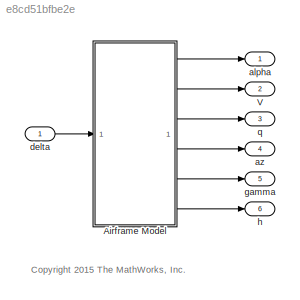
MODEL slx_e8cd51bfbe2e
KIND model
CONFIG AbsTol = 1e-6
CONFIG EnableMultiTasking = off
CONFIG FixedStep = auto
CONFIG MaxStep = auto
CONFIG MinStep = auto
CONFIG RelTol = 1e-3
CONFIG SampleTimeConstraint = Unconstrained
CONFIG SolverName = ode45
CONFIG StartTime = 0.0
CONFIG StopTime = 1
WORKSPACE source: MATLAB code (in-file)
WORKSPACE code: AirframeData
WORKSPACE x_ini = 0
WORKSPACE h_ini = 10000/3.28084  (= 3047.99990246)
WORKSPACE theta_ini = 0
WORKSPACE q_ini = 0
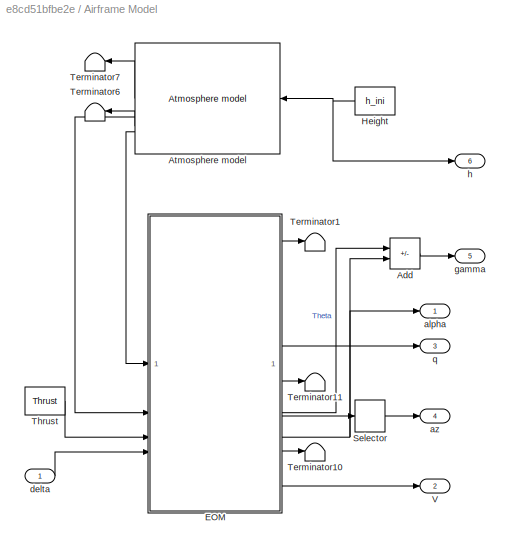
BLOCK [SubSystem] Airframe Model
BLOCK [Sum] Airframe Model/Add
  IconShape = rectangular
  Inputs = +-
BLOCK [Reference] Airframe Model/Atmosphere model  REF=aerospace/Atmosphere/Atmosphere  (lib defined in mdl_cf564d925549, slx_1354fe9238a2, +3 more)
model
  SourceBlock = aerospace/Atmosphere/Atmosphere\nmodel
  SourceType = Atmosphere Model
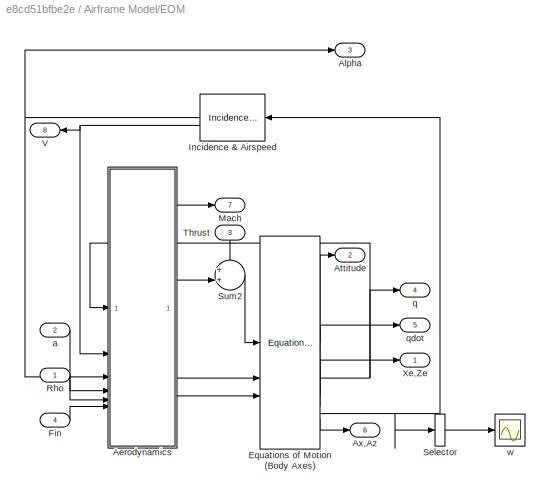
BLOCK [SubSystem] Airframe Model/EOM
BLOCK [Reference] Airframe Model/EOM/ Equations of Motion (Body Axes)  REF=aerospace/3DoF  (lib defined in mdl_cf564d925549, slx_1354fe9238a2, +3 more)
Equations
of
Motion / Equations of Motion
(Body Axes)
  SourceBlock = aerospace/3DoF\nEquations\nof\nMotion / Equations of Motion\n(Body Axes)
  SourceType = 3 DOF equations of motion
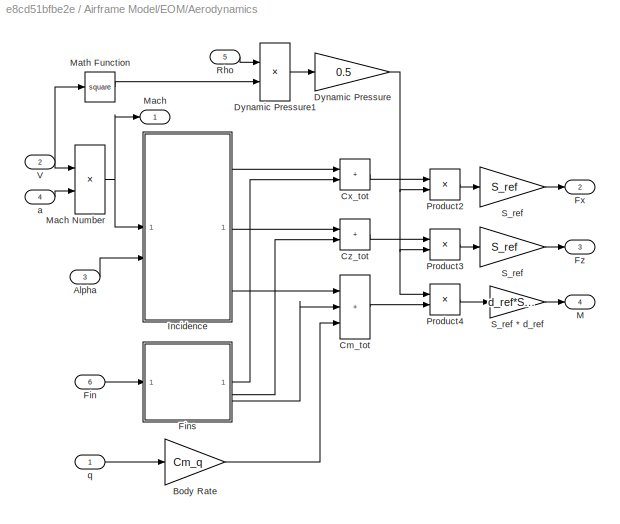
BLOCK [SubSystem] Airframe Model/EOM/Aerodynamics
BLOCK [Outport] Airframe Model/EOM/Aerodynamics/ M
  InitialOutput = 0
  Port = 4
  VectorParamsAs1DForOutWhenUnconnected = off
BLOCK [Outport] Airframe Model/EOM/Aerodynamics/ Mach
  InitialOutput = 0
  NameLocation = top
  VectorParamsAs1DForOutWhenUnconnected = off
BLOCK [Inport] Airframe Model/EOM/Aerodynamics/Alpha
  Port = 3
BLOCK [Gain] Airframe Model/EOM/Aerodynamics/Body Rate
  Gain = Cm_q
  OutDataTypeStr = Inherit: Same as input
  ParamDataTypeStr = Inherit: Same as input
  SaturateOnIntegerOverflow = on
BLOCK [Sum] Airframe Model/EOM/Aerodynamics/Cm_tot
  IconShape = rectangular
  InputSameDT = on
  Inputs = +++
  OutDataTypeStr = Inherit: Same as first input
  SaturateOnIntegerOverflow = on
BLOCK [Sum] Airframe Model/EOM/Aerodynamics/Cx_tot
  IconShape = rectangular
  InputSameDT = on
  OutDataTypeStr = Inherit: Same as first input
  SaturateOnIntegerOverflow = on
BLOCK [Sum] Airframe Model/EOM/Aerodynamics/Cz_tot
  IconShape = rectangular
  InputSameDT = on
  OutDataTypeStr = Inherit: Same as first input
  SaturateOnIntegerOverflow = on
BLOCK [Gain] Airframe Model/EOM/Aerodynamics/Dynamic Pressure
  Gain = 0.5
  OutDataTypeStr = Inherit: Same as input
  ParamDataTypeStr = Inherit: Same as input
  SaturateOnIntegerOverflow = on
BLOCK [Product] Airframe Model/EOM/Aerodynamics/Dynamic Pressure1
  InputSameDT = on
  OutDataTypeStr = Inherit: Same as first input
  SaturateOnIntegerOverflow = on
BLOCK [Inport] Airframe Model/EOM/Aerodynamics/Fin
  Port = 6
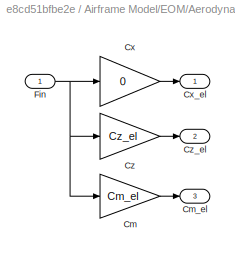
BLOCK [SubSystem] Airframe Model/EOM/Aerodynamics/Fins
BLOCK [Gain] Airframe Model/EOM/Aerodynamics/Fins/Cm
  Gain = Cm_el
  OutDataTypeStr = Inherit: Same as input
  ParamDataTypeStr = Inherit: Same as input
  SaturateOnIntegerOverflow = on
BLOCK [Outport] Airframe Model/EOM/Aerodynamics/Fins/Cm_el
  InitialOutput = 0
  Port = 3
  VectorParamsAs1DForOutWhenUnconnected = off
BLOCK [Gain] Airframe Model/EOM/Aerodynamics/Fins/Cx
  Gain = 0
  OutDataTypeStr = Inherit: Same as input
  ParamDataTypeStr = Inherit: Same as input
  SaturateOnIntegerOverflow = on
BLOCK [Outport] Airframe Model/EOM/Aerodynamics/Fins/Cx_el
  InitialOutput = 0
  VectorParamsAs1DForOutWhenUnconnected = off
BLOCK [Gain] Airframe Model/EOM/Aerodynamics/Fins/Cz
  Gain = Cz_el
  OutDataTypeStr = Inherit: Same as input
  ParamDataTypeStr = Inherit: Same as input
  SaturateOnIntegerOverflow = on
BLOCK [Outport] Airframe Model/EOM/Aerodynamics/Fins/Cz_el
  InitialOutput = 0
  Port = 2
  VectorParamsAs1DForOutWhenUnconnected = off
BLOCK [Inport] Airframe Model/EOM/Aerodynamics/Fins/Fin
BLOCK [Outport] Airframe Model/EOM/Aerodynamics/Fx
  InitialOutput = [0]
  Port = 2
  VectorParamsAs1DForOutWhenUnconnected = off
BLOCK [Outport] Airframe Model/EOM/Aerodynamics/Fz
  InitialOutput = 0
  Port = 3
  VectorParamsAs1DForOutWhenUnconnected = off
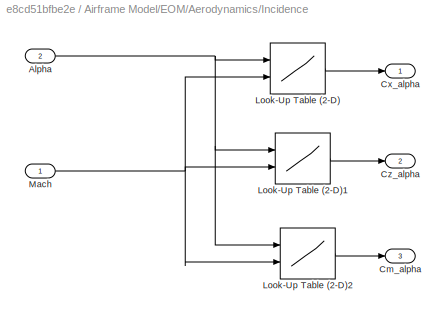
BLOCK [SubSystem] Airframe Model/EOM/Aerodynamics/Incidence
BLOCK [Inport] Airframe Model/EOM/Aerodynamics/Incidence/Alpha
  Port = 2
BLOCK [Outport] Airframe Model/EOM/Aerodynamics/Incidence/Cm_alpha
  InitialOutput = 0
  Port = 3
  VectorParamsAs1DForOutWhenUnconnected = off
BLOCK [Outport] Airframe Model/EOM/Aerodynamics/Incidence/Cx_alpha
  InitialOutput = 0
  VectorParamsAs1DForOutWhenUnconnected = off
BLOCK [Outport] Airframe Model/EOM/Aerodynamics/Incidence/Cz_alpha
  InitialOutput = 0
  Port = 2
  VectorParamsAs1DForOutWhenUnconnected = off
BLOCK [Lookup2D] Airframe Model/EOM/Aerodynamics/Incidence/Look-Up Table (2-D)
  ColumnIndex = Mach_vec
  InputSameDT = off
  RowIndex = alpha_vec
  Table = Cx_alpha
BLOCK [Lookup2D] Airframe Model/EOM/Aerodynamics/Incidence/Look-Up Table (2-D)1
  ColumnIndex = Mach_vec
  InputSameDT = off
  RowIndex = alpha_vec
  Table = Cz_alpha
BLOCK [Lookup2D] Airframe Model/EOM/Aerodynamics/Incidence/Look-Up Table (2-D)2
  ColumnIndex = Mach_vec
  InputSameDT = off
  RowIndex = alpha_vec
  Table = Cm_alpha
BLOCK [Inport] Airframe Model/EOM/Aerodynamics/Incidence/Mach
BLOCK [Product] Airframe Model/EOM/Aerodynamics/Mach Number
  InputSameDT = on
  Inputs = */
  OutDataTypeStr = Inherit: Same as first input
  SaturateOnIntegerOverflow = on
BLOCK [Math] Airframe Model/EOM/Aerodynamics/Math Function
  Operator = square
  SignedPower = on
BLOCK [Product] Airframe Model/EOM/Aerodynamics/Product2
  InputSameDT = on
  OutDataTypeStr = Inherit: Same as first input
  SaturateOnIntegerOverflow = on
BLOCK [Product] Airframe Model/EOM/Aerodynamics/Product3
  InputSameDT = on
  OutDataTypeStr = Inherit: Same as first input
  SaturateOnIntegerOverflow = on
BLOCK [Product] Airframe Model/EOM/Aerodynamics/Product4
  InputSameDT = on
  OutDataTypeStr = Inherit: Same as first input
  SaturateOnIntegerOverflow = on
BLOCK [Inport] Airframe Model/EOM/Aerodynamics/Rho
  NameLocation = top
  Port = 5
BLOCK [Gain] Airframe Model/EOM/Aerodynamics/S_ref
  Gain = S_ref
  OutDataTypeStr = Inherit: Same as input
  ParamDataTypeStr = Inherit: Same as input
  SaturateOnIntegerOverflow = on
BLOCK [Gain] Airframe Model/EOM/Aerodynamics/S_ref 
  Gain = S_ref
  OutDataTypeStr = Inherit: Same as input
  ParamDataTypeStr = Inherit: Same as input
  SaturateOnIntegerOverflow = on
BLOCK [Gain] Airframe Model/EOM/Aerodynamics/S_ref * d_ref
  Gain = d_ref*S_ref
  OutDataTypeStr = Inherit: Same as input
  ParamDataTypeStr = Inherit: Same as input
  SaturateOnIntegerOverflow = on
BLOCK [Inport] Airframe Model/EOM/Aerodynamics/V
  Port = 2
BLOCK [Inport] Airframe Model/EOM/Aerodynamics/a
  Port = 4
BLOCK [Inport] Airframe Model/EOM/Aerodynamics/q
BLOCK [Outport] Airframe Model/EOM/Alpha
  InitialOutput = 0
  Port = 3
  VectorParamsAs1DForOutWhenUnconnected = off
BLOCK [Outport] Airframe Model/EOM/Attitude
  InitialOutput = 0
  Port = 2
  VectorParamsAs1DForOutWhenUnconnected = off
BLOCK [Outport] Airframe Model/EOM/Ax,Az
  InitialOutput = 0
  Port = 6
  VectorParamsAs1DForOutWhenUnconnected = off
BLOCK [Inport] Airframe Model/EOM/Fin
  Port = 4
BLOCK [Reference] Airframe Model/EOM/Incidence & Airspeed  REF=aerospace/3DoF  (lib defined in mdl_cf564d925549, slx_1354fe9238a2, +3 more)
Equations
of
Motion /Incidence 
& Airspeed
  NameLocation = top
  SourceBlock = aerospace/3DoF\nEquations\nof\nMotion /Incidence \n& Airspeed
  SourceType = Incidence and Airspeed
BLOCK [Outport] Airframe Model/EOM/Mach
  InitialOutput = 0
  NameLocation = top
  Port = 7
  VectorParamsAs1DForOutWhenUnconnected = off
BLOCK [Inport] Airframe Model/EOM/Rho
BLOCK [Selector] Airframe Model/EOM/Selector
  IndexOptions = Index vector (dialog)
  Indices = [2]
  InputPortWidth = 2
  OutputSizes = 1
BLOCK [Sum] Airframe Model/EOM/Sum2
  InputSameDT = on
  Inputs = ++|
  OutDataTypeStr = Inherit: Same as first input
  SaturateOnIntegerOverflow = on
BLOCK [Inport] Airframe Model/EOM/Thrust
  NameLocation = left
  Port = 3
BLOCK [Outport] Airframe Model/EOM/V
  InitialOutput = 0
  Port = 8
  VectorParamsAs1DForOutWhenUnconnected = off
BLOCK [Outport] Airframe Model/EOM/Xe,Ze
  InitialOutput = 0
  VectorParamsAs1DForOutWhenUnconnected = off
BLOCK [Inport] Airframe Model/EOM/a
  Port = 2
BLOCK [Outport] Airframe Model/EOM/q
  InitialOutput = 0
  Port = 4
  VectorParamsAs1DForOutWhenUnconnected = off
BLOCK [Outport] Airframe Model/EOM/qdot
  InitialOutput = 0
  Port = 5
  VectorParamsAs1DForOutWhenUnconnected = off
BLOCK [Scope] Airframe Model/EOM/w
  Floating = off
  NumInputPorts = 1
  ScopeSpecificationString = C++SS(StrPVP('Location','[118, 405, 442, 644]'),StrPVP('Open','off'),MxPVP('AxesTitles',54,'struct(''axes1'',''%<SignalLabel>'')'),MxPVP('ScopeGraphics',57,'struct(''FigureColor'',''[0.5 0.5 0.5]'',''AxesColor'',''[0 0 0]'',''AxesTickColor'',''[1 1 1]'',''LineColors'',''[1 1 0;1 0 1;0 1 1;1 0 0;0 1 0;0 0 1]'',''LineStyles'',''-|-|-|-|-|-'',''LineWidths'',''[0.5 0.5 0.5 0.5 0.5 0.5]'',''MarkerStyle...<+243ch>
BLOCK [Constant] Airframe Model/Height
  Value = h_ini
BLOCK [Selector] Airframe Model/Selector
  IndexOptions = Index vector (dialog)
  Indices = [2]
  InputPortWidth = 2
  OutputSizes = 1
BLOCK [Terminator] Airframe Model/Terminator1
BLOCK [Terminator] Airframe Model/Terminator10
BLOCK [Terminator] Airframe Model/Terminator11
BLOCK [Terminator] Airframe Model/Terminator6
BLOCK [Terminator] Airframe Model/Terminator7
BLOCK [Constant] Airframe Model/Thrust
  Value = Thrust
BLOCK [Outport] Airframe Model/V
  InitialOutput = 0
  Port = 2
  VectorParamsAs1DForOutWhenUnconnected = off
BLOCK [Outport] Airframe Model/alpha
  InitialOutput = 0
  VectorParamsAs1DForOutWhenUnconnected = off
BLOCK [Outport] Airframe Model/az
  InitialOutput = 0
  Port = 4
  VectorParamsAs1DForOutWhenUnconnected = off
BLOCK [Inport] Airframe Model/delta
BLOCK [Outport] Airframe Model/gamma
  InitialOutput = 0
  Port = 5
  VectorParamsAs1DForOutWhenUnconnected = off
BLOCK [Outport] Airframe Model/h
  Port = 6
  VectorParamsAs1DForOutWhenUnconnected = off
BLOCK [Outport] Airframe Model/q
  InitialOutput = 0
  Port = 3
  VectorParamsAs1DForOutWhenUnconnected = off
BLOCK [Outport] V
  InitialOutput = 0
  Port = 2
  VectorParamsAs1DForOutWhenUnconnected = off
BLOCK [Outport] alpha
  InitialOutput = 0
  VectorParamsAs1DForOutWhenUnconnected = off
BLOCK [Outport] az
  InitialOutput = 0
  Port = 4
  VectorParamsAs1DForOutWhenUnconnected = off
BLOCK [Inport] delta
BLOCK [Outport] gamma
  InitialOutput = 0
  Port = 5
  VectorParamsAs1DForOutWhenUnconnected = off
BLOCK [Outport] h
  InitialOutput = 0
  Port = 6
  VectorParamsAs1DForOutWhenUnconnected = off
BLOCK [Outport] q
  InitialOutput = 0
  Port = 3
  VectorParamsAs1DForOutWhenUnconnected = off
ANNOTATION (root): <copyright redacted>
LINE Airframe Model/Add:1 -> Airframe Model/gamma:1
LINE Airframe Model/Atmosphere model:1 -> Airframe Model/Terminator7:1
LINE Airframe Model/Atmosphere model:2 -> Airframe Model/EOM:2
LINE Airframe Model/Atmosphere model:3 -> Airframe Model/Terminator6:1
LINE Airframe Model/Atmosphere model:4 -> Airframe Model/EOM:1
LINE Airframe Model/EOM/ Equations of Motion (Body Axes):1 -> Airframe Model/EOM/Attitude:1
NET Airframe Model/EOM/ Equations of Motion (Body Axes):2 -> Airframe Model/EOM/Aerodynamics:1, Airframe Model/EOM/q:1
LINE Airframe Model/EOM/ Equations of Motion (Body Axes):3 -> Airframe Model/EOM/qdot:1
LINE Airframe Model/EOM/ Equations of Motion (Body Axes):4 -> Airframe Model/EOM/Xe,Ze:1
NET Airframe Model/EOM/ Equations of Motion (Body Axes):5 -> Airframe Model/EOM/Incidence & Airspeed:1, Airframe Model/EOM/Selector:1
LINE Airframe Model/EOM/ Equations of Motion (Body Axes):6 -> Airframe Model/EOM/Ax,Az:1
LINE Airframe Model/EOM/Aerodynamics/Alpha:1 -> Airframe Model/EOM/Aerodynamics/Incidence:2
LINE Airframe Model/EOM/Aerodynamics/Body Rate:1 -> Airframe Model/EOM/Aerodynamics/Cm_tot:3
LINE Airframe Model/EOM/Aerodynamics/Cm_tot:1 -> Airframe Model/EOM/Aerodynamics/Product4:2
LINE Airframe Model/EOM/Aerodynamics/Cx_tot:1 -> Airframe Model/EOM/Aerodynamics/Product2:1
LINE Airframe Model/EOM/Aerodynamics/Cz_tot:1 -> Airframe Model/EOM/Aerodynamics/Product3:1
LINE Airframe Model/EOM/Aerodynamics/Dynamic Pressure1:1 -> Airframe Model/EOM/Aerodynamics/Dynamic Pressure:1
NET Airframe Model/EOM/Aerodynamics/Dynamic Pressure:1 -> Airframe Model/EOM/Aerodynamics/Product2:2, Airframe Model/EOM/Aerodynamics/Product3:2, Airframe Model/EOM/Aerodynamics/Product4:1
LINE Airframe Model/EOM/Aerodynamics/Fin:1 -> Airframe Model/EOM/Aerodynamics/Fins:1
LINE Airframe Model/EOM/Aerodynamics/Fins/Cm:1 -> Airframe Model/EOM/Aerodynamics/Fins/Cm_el:1
LINE Airframe Model/EOM/Aerodynamics/Fins/Cx:1 -> Airframe Model/EOM/Aerodynamics/Fins/Cx_el:1
LINE Airframe Model/EOM/Aerodynamics/Fins/Cz:1 -> Airframe Model/EOM/Aerodynamics/Fins/Cz_el:1
NET Airframe Model/EOM/Aerodynamics/Fins/Fin:1 -> Airframe Model/EOM/Aerodynamics/Fins/Cm:1, Airframe Model/EOM/Aerodynamics/Fins/Cx:1, Airframe Model/EOM/Aerodynamics/Fins/Cz:1
LINE Airframe Model/EOM/Aerodynamics/Fins:1 -> Airframe Model/EOM/Aerodynamics/Cx_tot:2
LINE Airframe Model/EOM/Aerodynamics/Fins:2 -> Airframe Model/EOM/Aerodynamics/Cz_tot:2
LINE Airframe Model/EOM/Aerodynamics/Fins:3 -> Airframe Model/EOM/Aerodynamics/Cm_tot:2
NET Airframe Model/EOM/Aerodynamics/Incidence/Alpha:1 -> Airframe Model/EOM/Aerodynamics/Incidence/Look-Up Table (2-D)1:1, Airframe Model/EOM/Aerodynamics/Incidence/Look-Up Table (2-D)2:1, Airframe Model/EOM/Aerodynamics/Incidence/Look-Up Table (2-D):1
LINE Airframe Model/EOM/Aerodynamics/Incidence/Look-Up Table (2-D)1:1 -> Airframe Model/EOM/Aerodynamics/Incidence/Cz_alpha:1
LINE Airframe Model/EOM/Aerodynamics/Incidence/Look-Up Table (2-D)2:1 -> Airframe Model/EOM/Aerodynamics/Incidence/Cm_alpha:1
LINE Airframe Model/EOM/Aerodynamics/Incidence/Look-Up Table (2-D):1 -> Airframe Model/EOM/Aerodynamics/Incidence/Cx_alpha:1
NET Airframe Model/EOM/Aerodynamics/Incidence/Mach:1 -> Airframe Model/EOM/Aerodynamics/Incidence/Look-Up Table (2-D)1:2, Airframe Model/EOM/Aerodynamics/Incidence/Look-Up Table (2-D)2:2, Airframe Model/EOM/Aerodynamics/Incidence/Look-Up Table (2-D):2
LINE Airframe Model/EOM/Aerodynamics/Incidence:1 -> Airframe Model/EOM/Aerodynamics/Cx_tot:1
LINE Airframe Model/EOM/Aerodynamics/Incidence:2 -> Airframe Model/EOM/Aerodynamics/Cz_tot:1
LINE Airframe Model/EOM/Aerodynamics/Incidence:3 -> Airframe Model/EOM/Aerodynamics/Cm_tot:1
NET Airframe Model/EOM/Aerodynamics/Mach Number:1 -> Airframe Model/EOM/Aerodynamics/ Mach:1, Airframe Model/EOM/Aerodynamics/Incidence:1
LINE Airframe Model/EOM/Aerodynamics/Math Function:1 -> Airframe Model/EOM/Aerodynamics/Dynamic Pressure1:2
LINE Airframe Model/EOM/Aerodynamics/Product2:1 -> Airframe Model/EOM/Aerodynamics/S_ref:1
LINE Airframe Model/EOM/Aerodynamics/Product3:1 -> Airframe Model/EOM/Aerodynamics/S_ref :1
LINE Airframe Model/EOM/Aerodynamics/Product4:1 -> Airframe Model/EOM/Aerodynamics/S_ref * d_ref:1
LINE Airframe Model/EOM/Aerodynamics/Rho:1 -> Airframe Model/EOM/Aerodynamics/Dynamic Pressure1:1
LINE Airframe Model/EOM/Aerodynamics/S_ref * d_ref:1 -> Airframe Model/EOM/Aerodynamics/ M:1
LINE Airframe Model/EOM/Aerodynamics/S_ref :1 -> Airframe Model/EOM/Aerodynamics/Fz:1
LINE Airframe Model/EOM/Aerodynamics/S_ref:1 -> Airframe Model/EOM/Aerodynamics/Fx:1
NET Airframe Model/EOM/Aerodynamics/V:1 -> Airframe Model/EOM/Aerodynamics/Mach Number:1, Airframe Model/EOM/Aerodynamics/Math Function:1
LINE Airframe Model/EOM/Aerodynamics/a:1 -> Airframe Model/EOM/Aerodynamics/Mach Number:2
LINE Airframe Model/EOM/Aerodynamics/q:1 -> Airframe Model/EOM/Aerodynamics/Body Rate:1
LINE Airframe Model/EOM/Aerodynamics:1 -> Airframe Model/EOM/Mach:1
LINE Airframe Model/EOM/Aerodynamics:2 -> Airframe Model/EOM/Sum2:2
LINE Airframe Model/EOM/Aerodynamics:3 -> Airframe Model/EOM/ Equations of Motion (Body Axes):2
LINE Airframe Model/EOM/Aerodynamics:4 -> Airframe Model/EOM/ Equations of Motion (Body Axes):3
LINE Airframe Model/EOM/Fin:1 -> Airframe Model/EOM/Aerodynamics:6
NET Airframe Model/EOM/Incidence & Airspeed:1 -> Airframe Model/EOM/Aerodynamics:3, Airframe Model/EOM/Alpha:1
NET Airframe Model/EOM/Incidence & Airspeed:2 -> Airframe Model/EOM/Aerodynamics:2, Airframe Model/EOM/V:1
LINE Airframe Model/EOM/Rho:1 -> Airframe Model/EOM/Aerodynamics:5
LINE Airframe Model/EOM/Selector:1 -> Airframe Model/EOM/w:1
LINE Airframe Model/EOM/Sum2:1 -> Airframe Model/EOM/ Equations of Motion (Body Axes):1
LINE Airframe Model/EOM/Thrust:1 -> Airframe Model/EOM/Sum2:1
LINE Airframe Model/EOM/a:1 -> Airframe Model/EOM/Aerodynamics:4
LINE Airframe Model/EOM:1 -> Airframe Model/Terminator1:1
LINE Airframe Model/EOM:2 -> Airframe Model/Add:1
NET Airframe Model/EOM:3 -> Airframe Model/Add:2, Airframe Model/alpha:1
LINE Airframe Model/EOM:4 -> Airframe Model/q:1
LINE Airframe Model/EOM:5 -> Airframe Model/Terminator11:1
LINE Airframe Model/EOM:6 -> Airframe Model/Selector:1
LINE Airframe Model/EOM:7 -> Airframe Model/Terminator10:1
LINE Airframe Model/EOM:8 -> Airframe Model/V:1
NET Airframe Model/Height:1 -> Airframe Model/Atmosphere model:1, Airframe Model/h:1
LINE Airframe Model/Selector:1 -> Airframe Model/az:1
LINE Airframe Model/Thrust:1 -> Airframe Model/EOM:3
LINE Airframe Model/delta:1 -> Airframe Model/EOM:4
LINE Airframe Model:1 -> alpha:1
LINE Airframe Model:2 -> V:1
LINE Airframe Model:3 -> q:1
LINE Airframe Model:4 -> az:1
LINE Airframe Model:5 -> gamma:1
LINE Airframe Model:6 -> h:1
LINE delta:1 -> Airframe Model:1
note: NET lines group one-source signal fan-out (src -> all destinations, sorted); 1:1 wires keep LINE
